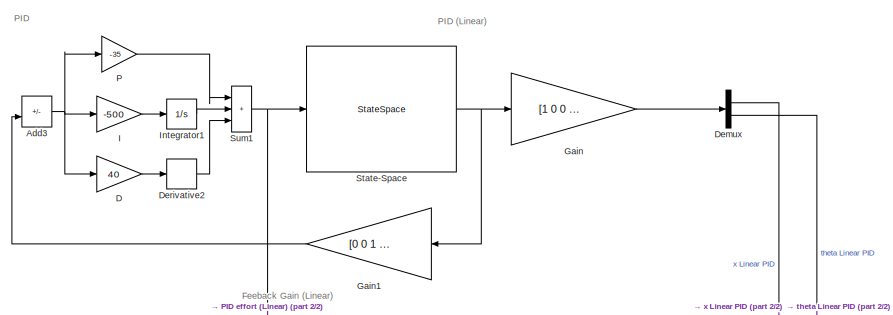
[diagram: root canvas - part 1/2, full width, top band]
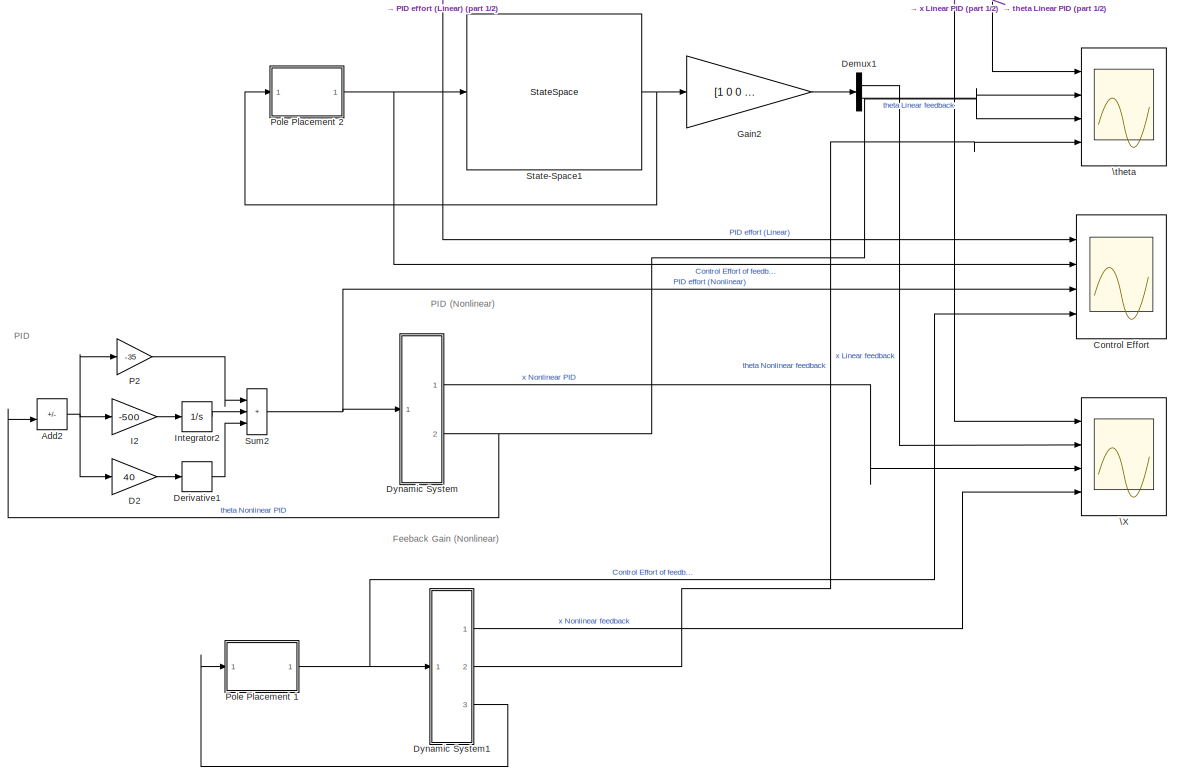
[diagram: root canvas - part 2/2, full width, middle band]
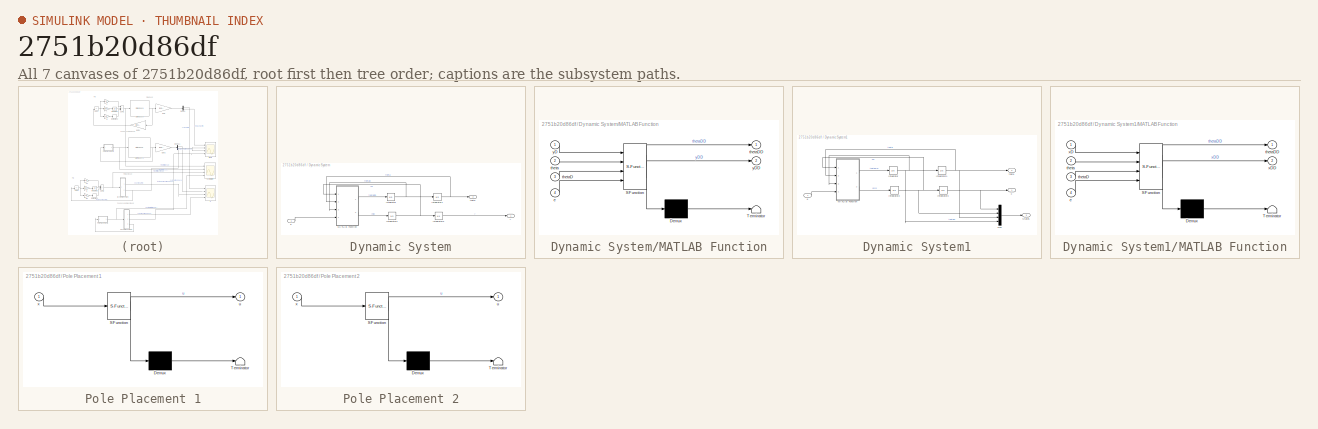
[diagram: thumbnail index - all 7 canvases of the model, root first then tree order]
MODEL slx_2751b20d86df
KIND model
CONFIG AbsTol = auto
CONFIG EnableMultiTasking = off
CONFIG FixedStep = auto
CONFIG MaxStep = auto
CONFIG MinStep = auto
CONFIG RelTol = 1e-3
CONFIG SampleTimeConstraint = Unconstrained
CONFIG SolverName = VariableStepAuto
CONFIG StartTime = 0.0
CONFIG StopTime = 10.0
BLOCK [Sum] Add2
  IconShape = rectangular
  Inputs = +-
  Ports = [2, 1]
BLOCK [Sum] Add3
  IconShape = rectangular
  Inputs = +-
  Ports = [2, 1]
BLOCK [Scope] Control Effort
  Floating = off
  NumInputPorts = 4
  Ports = [4]
  ScopeSpecificationString = Simulink.scopes.TimeScopeBlockCfg('CurrentConfiguration', extmgr.ConfigurationSet(extmgr.Configuration('Core','General UI',true),extmgr.Configuration('Core','Source UI',true),extmgr.Configuration('Sources','WiredSimulink',true),extmgr.Configuration('Visuals','Time Domain',true,'SerializedDisplays',{struct('MinYLimReal','-321.97961','MaxYLimReal','744.68705','YLabelReal','k*u','MinYLimMag',' 0.0000...<+1611ch>
BLOCK [Gain] D
  Gain = 40
BLOCK [Gain] D2
  Gain = 40
BLOCK [Demux] Demux
  Outputs = 2
  Ports = [1, 2]
BLOCK [Demux] Demux1
  Outputs = 2
  Ports = [1, 2]
BLOCK [Derivative] Derivative1
BLOCK [Derivative] Derivative2
BLOCK [SubSystem] Dynamic System
  Ports = [1, 2]
  RequestExecContextInheritance = off
BLOCK [Integrator] Dynamic System/Integrator
  Ports = [1, 1]
BLOCK [Integrator] Dynamic System/Integrator1
  InitialCondition = 10*pi/180
  Ports = [1, 1]
BLOCK [Integrator] Dynamic System/Integrator2
  Ports = [1, 1]
BLOCK [Integrator] Dynamic System/Integrator3
  Ports = [1, 1]
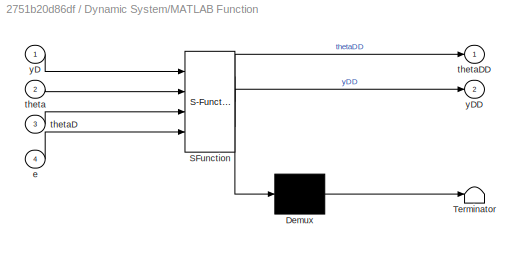
BLOCK [SubSystem] Dynamic System/MATLAB Function
  ErrorFcn = Stateflow.Translate.translate
  PermitHierarchicalResolution = ExplicitOnly
  Ports = [4, 2]
  RequestExecContextInheritance = off
  SFBlockType = MATLAB Function
  TreatAsAtomicUnit = on
BLOCK [Demux] Dynamic System/MATLAB Function/ Demux 
  Outputs = 1
  Ports = [1, 1]
BLOCK [S-Function] Dynamic System/MATLAB Function/ SFunction 
  EnableBusSupport = on
  FunctionName = sf_sfun
  PortCounts = [4 3]
  Ports = [4, 3]
  SFcnIsStateOwnerBlock = off
  SFunctionDeploymentMode = off
  Tag = Stateflow S-Function 2
BLOCK [Terminator] Dynamic System/MATLAB Function/ Terminator 
BLOCK [Inport] Dynamic System/MATLAB Function/e
  Port = 4
BLOCK [Inport] Dynamic System/MATLAB Function/theta
  Port = 2
BLOCK [Inport] Dynamic System/MATLAB Function/thetaD
  Port = 3
BLOCK [Outport] Dynamic System/MATLAB Function/thetaDD
BLOCK [Inport] Dynamic System/MATLAB Function/yD
BLOCK [Outport] Dynamic System/MATLAB Function/yDD
  Port = 2
BLOCK [Inport] Dynamic System/e
BLOCK [Outport] Dynamic System/theta
  Port = 2
BLOCK [Outport] Dynamic System/y
BLOCK [SubSystem] Dynamic System1
  Ports = [1, 3]
  RequestExecContextInheritance = off
BLOCK [Integrator] Dynamic System1/Integrator
  Ports = [1, 1]
BLOCK [Integrator] Dynamic System1/Integrator1
  InitialCondition = 10*pi/180
  Ports = [1, 1]
BLOCK [Integrator] Dynamic System1/Integrator2
  Ports = [1, 1]
BLOCK [Integrator] Dynamic System1/Integrator3
  Ports = [1, 1]
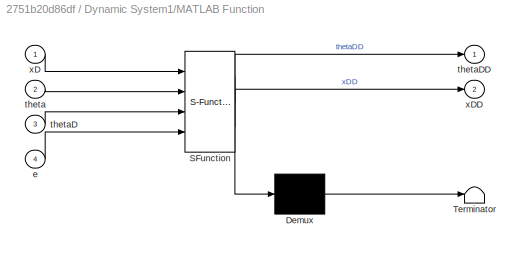
BLOCK [SubSystem] Dynamic System1/MATLAB Function
  ErrorFcn = Stateflow.Translate.translate
  PermitHierarchicalResolution = ExplicitOnly
  Ports = [4, 2]
  RequestExecContextInheritance = off
  SFBlockType = MATLAB Function
  TreatAsAtomicUnit = on
BLOCK [Demux] Dynamic System1/MATLAB Function/ Demux 
  Outputs = 1
  Ports = [1, 1]
BLOCK [S-Function] Dynamic System1/MATLAB Function/ SFunction 
  EnableBusSupport = on
  FunctionName = sf_sfun
  PortCounts = [4 3]
  Ports = [4, 3]
  SFcnIsStateOwnerBlock = off
  SFunctionDeploymentMode = off
  Tag = Stateflow S-Function 1
BLOCK [Terminator] Dynamic System1/MATLAB Function/ Terminator 
BLOCK [Inport] Dynamic System1/MATLAB Function/e
  Port = 4
BLOCK [Inport] Dynamic System1/MATLAB Function/theta
  Port = 2
BLOCK [Inport] Dynamic System1/MATLAB Function/thetaD
  Port = 3
BLOCK [Outport] Dynamic System1/MATLAB Function/thetaDD
BLOCK [Inport] Dynamic System1/MATLAB Function/xD
BLOCK [Outport] Dynamic System1/MATLAB Function/xDD
  Port = 2
BLOCK [Mux] Dynamic System1/Mux
  DisplayOption = bar
  Ports = [4, 1]
BLOCK [Outport] Dynamic System1/States
  Port = 3
BLOCK [Inport] Dynamic System1/e
BLOCK [Outport] Dynamic System1/theta
  Port = 2
BLOCK [Outport] Dynamic System1/x
BLOCK [Gain] Gain
  Gain = [1 0 0 0;0 0 1 0]
  Multiplication = Matrix(K*u)
BLOCK [Gain] Gain1
  Gain = [0 0 1 0]
  Multiplication = Matrix(K*u)
  NameLocation = top
BLOCK [Gain] Gain2
  Gain = [1 0 0 0;0 0 1 0]
  Multiplication = Matrix(K*u)
BLOCK [Gain] I
  Gain = -500
BLOCK [Gain] I2
  Gain = -500
BLOCK [Integrator] Integrator1
  Ports = [1, 1]
BLOCK [Integrator] Integrator2
  Ports = [1, 1]
BLOCK [Gain] P
  Gain = -35
BLOCK [Gain] P2
  Gain = -35
BLOCK [SubSystem] Pole Placement 1
  ErrorFcn = Stateflow.Translate.translate
  PermitHierarchicalResolution = ExplicitOnly
  Ports = [1, 1]
  RequestExecContextInheritance = off
  SFBlockType = MATLAB Function
  TreatAsAtomicUnit = on
BLOCK [Demux] Pole Placement 1/ Demux 
  Outputs = 1
  Ports = [1, 1]
BLOCK [S-Function] Pole Placement 1/ SFunction 
  EnableBusSupport = on
  FunctionName = sf_sfun
  PortCounts = [1 2]
  Ports = [1, 2]
  SFcnIsStateOwnerBlock = off
  SFunctionDeploymentMode = off
  Tag = Stateflow S-Function 5
BLOCK [Terminator] Pole Placement 1/ Terminator 
BLOCK [Outport] Pole Placement 1/u
BLOCK [Inport] Pole Placement 1/x
BLOCK [SubSystem] Pole Placement 2
  ErrorFcn = Stateflow.Translate.translate
  PermitHierarchicalResolution = ExplicitOnly
  Ports = [1, 1]
  RequestExecContextInheritance = off
  SFBlockType = MATLAB Function
  TreatAsAtomicUnit = on
BLOCK [Demux] Pole Placement 2/ Demux 
  Outputs = 1
  Ports = [1, 1]
BLOCK [S-Function] Pole Placement 2/ SFunction 
  EnableBusSupport = on
  FunctionName = sf_sfun
  PortCounts = [1 2]
  Ports = [1, 2]
  SFcnIsStateOwnerBlock = off
  SFunctionDeploymentMode = off
  Tag = Stateflow S-Function 3
BLOCK [Terminator] Pole Placement 2/ Terminator 
BLOCK [Outport] Pole Placement 2/u
BLOCK [Inport] Pole Placement 2/x
BLOCK [StateSpace] State-Space
  A = [0 1 0 0;0 -25 -0.98 0;0 0 0 1;0 25 10.78 0]
  B = [0;0.5;0;-0.5]
  C = eye(4)
  D = [0;0;0;0]
  InitialCondition = [0;0;10*pi/180;0]
  Ports = [1, 1]
BLOCK [StateSpace] State-Space1
  A = [0 1 0 0;0 -25 -0.98 0;0 0 0 1;0 25 10.78 0]
  B = [0;0.5;0;-0.5]
  C = eye(4)
  D = [0;0;0;0]
  InitialCondition = [0;0;10*pi/180;0]
  Ports = [1, 1]
BLOCK [Sum] Sum1
  IconShape = rectangular
  Inputs = |+++
  Ports = [3, 1]
BLOCK [Sum] Sum2
  IconShape = rectangular
  Inputs = |+++
  Ports = [3, 1]
BLOCK [Scope] \X
  Floating = off
  NumInputPorts = 4
  Ports = [4]
  ScopeSpecificationString = Simulink.scopes.TimeScopeBlockCfg('CurrentConfiguration', extmgr.ConfigurationSet(extmgr.Configuration('Core','General UI',true),extmgr.Configuration('Core','Source UI',true),extmgr.Configuration('Sources','WiredSimulink',true,'DataLoggingVariableName','ScopeData2'),extmgr.Configuration('Visuals','Time Domain',true,'SerializedDisplays',{struct('MinYLimReal','-0.32743','MaxYLimReal','2.27989','YLab...<+1543ch>
BLOCK [Scope] \theta
  Floating = off
  NumInputPorts = 4
  Ports = [4]
  ScopeSpecificationString = Simulink.scopes.TimeScopeBlockCfg('CurrentConfiguration', extmgr.ConfigurationSet(extmgr.Configuration('Core','General UI',true),extmgr.Configuration('Core','Source UI',true),extmgr.Configuration('Sources','WiredSimulink',true,'DataLoggingVariableName','ScopeData1'),extmgr.Configuration('Visuals','Time Domain',true,'SerializedDisplays',{struct('MinYLimReal','-0.17101','MaxYLimReal','0.21293','YLab...<+1597ch>
ANNOTATION (root): Feeback Gain (Linear)
ANNOTATION (root): Feeback Gain (Nonlinear)
ANNOTATION (root): PID (Linear)
ANNOTATION (root): PID (Nonlinear)
ANNOTATION (root): PID
NET Add2:1 -> D2:1, I2:1, P2:1
NET Add3:1 -> D:1, I:1, P:1
LINE D2:1 -> Derivative1:1
LINE D:1 -> Derivative2:1
LINE Demux1:1 -> \X:2
LINE Demux1:2 -> \theta:2
LINE Demux:1 -> \X:1
LINE Demux:2 -> \theta:1
LINE Derivative1:1 -> Sum2:3
LINE Derivative2:1 -> Sum1:3
NET Dynamic System/Integrator1:1 -> Dynamic System/MATLAB Function:2, Dynamic System/theta:1
NET Dynamic System/Integrator2:1 -> Dynamic System/Integrator3:1, Dynamic System/MATLAB Function:1
LINE Dynamic System/Integrator3:1 -> Dynamic System/y:1
NET Dynamic System/Integrator:1 -> Dynamic System/Integrator1:1, Dynamic System/MATLAB Function:3
LINE Dynamic System/MATLAB Function:1 -> Dynamic System/Integrator:1
LINE Dynamic System/MATLAB Function:2 -> Dynamic System/Integrator2:1
LINE Dynamic System/e:1 -> Dynamic System/MATLAB Function:4
NET Dynamic System1/Integrator1:1 -> Dynamic System1/MATLAB Function:2, Dynamic System1/Mux:3, Dynamic System1/theta:1
NET Dynamic System1/Integrator2:1 -> Dynamic System1/Integrator3:1, Dynamic System1/MATLAB Function:1, Dynamic System1/Mux:2
NET Dynamic System1/Integrator3:1 -> Dynamic System1/Mux:1, Dynamic System1/x:1
NET Dynamic System1/Integrator:1 -> Dynamic System1/Integrator1:1, Dynamic System1/MATLAB Function:3, Dynamic System1/Mux:4
LINE Dynamic System1/MATLAB Function:1 -> Dynamic System1/Integrator:1
LINE Dynamic System1/MATLAB Function:2 -> Dynamic System1/Integrator2:1
LINE Dynamic System1/Mux:1 -> Dynamic System1/States:1
LINE Dynamic System1/e:1 -> Dynamic System1/MATLAB Function:4
LINE Dynamic System1:1 -> \X:4
LINE Dynamic System1:2 -> \theta:4
LINE Dynamic System1:3 -> Pole Placement 1:1
LINE Dynamic System:1 -> \X:3
NET Dynamic System:2 -> Add2:2, \theta:3
LINE Gain1:1 -> Add3:2
LINE Gain2:1 -> Demux1:1
LINE Gain:1 -> Demux:1
LINE I2:1 -> Integrator2:1
LINE I:1 -> Integrator1:1
LINE Integrator1:1 -> Sum1:2
LINE Integrator2:1 -> Sum2:2
LINE P2:1 -> Sum2:1
LINE P:1 -> Sum1:1
NET Pole Placement 1:1 -> Control Effort:4, Dynamic System1:1
NET Pole Placement 2:1 -> Control Effort:2, State-Space1:1
NET State-Space1:1 -> Gain2:1, Pole Placement 2:1
NET State-Space:1 -> Gain1:1, Gain:1
NET Sum1:1 -> Control Effort:1, State-Space:1
NET Sum2:1 -> Control Effort:3, Dynamic System:1
note: NET lines group one-source signal fan-out (src -> all destinations, sorted); 1:1 wires keep LINE
CHART Dynamic System1/MATLAB Function states=1 transitions=1
  STATE_LABEL 'eML_blk_kernel()'
  STATE_LABEL 'SCRIPT:\nfunction [thetaDD,xDD] = fcn(xD,theta,thetaD,e)\nk = 1 ; m = 0.1 ; M = 1 ; R = 100 ; r = 0.02 ; l = 1 ; g = 9.8 ; \nthetaDD = (m*l*sin(theta)*thetaD^2 - k^2/(R*r^2)*xD + k/(R*r)*e + (M+m)*(tan(theta)*xD*thetaD + g*tan(theta)))/(m*l*cos(theta)-(M+m)/cos(theta)) ; \nxDD = tan(theta)*xD*thetaD + g*tan(theta) - thetaDD/cos(theta) ; \n'
CHART Dynamic System/MATLAB Function states=1 transitions=1
  STATE_LABEL 'eML_blk_kernel()'
  STATE_LABEL 'SCRIPT:\nfunction [thetaDD,yDD] = fcn(yD,theta,thetaD,e)\nk = 1 ; m = 0.1 ; M = 1 ; R = 100 ; r = 0.02 ; l = 1 ; g = 9.8 ; \nthetaDD = (m*l*sin(theta)*thetaD^2 - k^2/(R*r^2)*yD + k/(R*r)*e + (M+m)*(tan(theta)*yD*thetaD + g*tan(theta)))/(m*l*cos(theta)-(M+m)/cos(theta)) ; \nyDD = tan(theta)*yD*thetaD + g*tan(theta) - thetaDD/cos(theta) ; \n'
CHART Pole Placement 2 states=1 transitions=1
  STATE_LABEL 'eML_blk_kernel()'
  STATE_LABEL 'SCRIPT:\nfunction u = fcn(x)\nK = [-326.5306 , -226.3265 , -812.0906 , -242.3265] ; \nu = -K*x ;\n \n'
CHART Pole Placement 1 states=1 transitions=1
  STATE_LABEL 'eML_blk_kernel()'
  STATE_LABEL 'SCRIPT:\nfunction u = fcn(x)\nK = [-326.5306 , -226.3265 , -812.0906 , -242.3265] ; \nu = -K*x ;\n \n'
CHART  states=0 transitions=0
CHART  states=0 transitions=0
CHART  states=0 transitions=0
CHART  states=0 transitions=0
